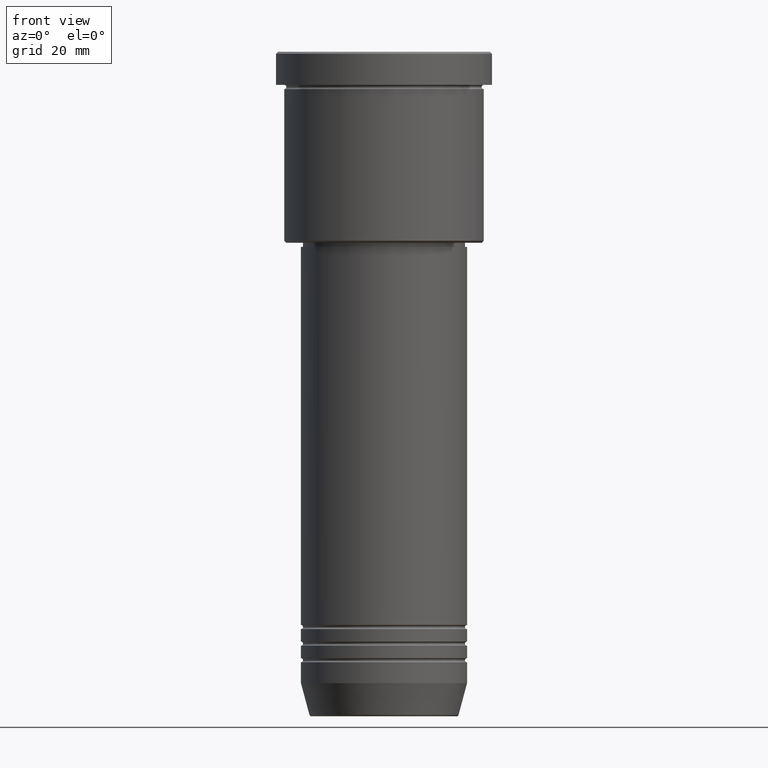
[diagram: clean part render]
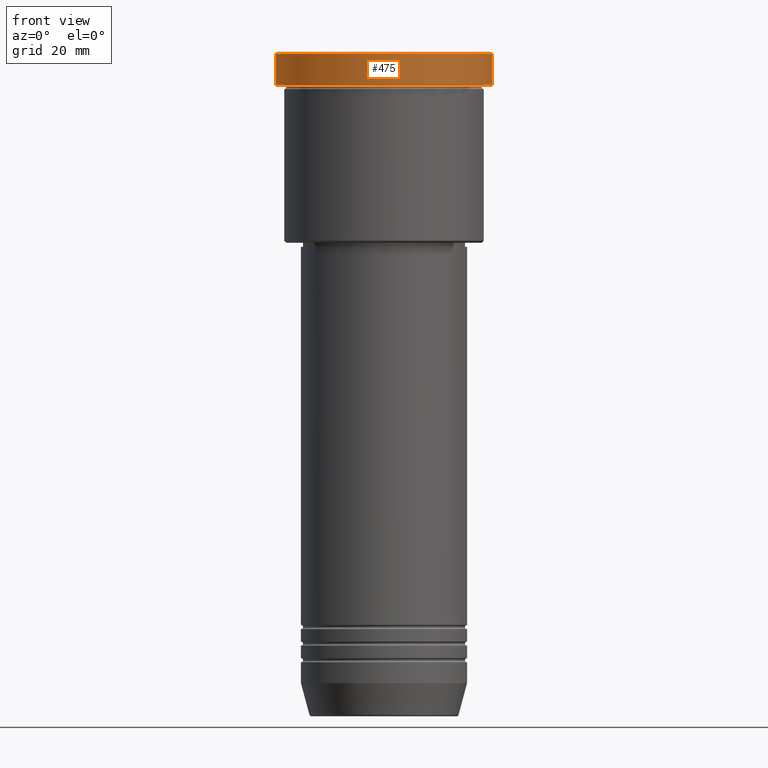
[diagram: same view with one face highlighted and labeled with its STEP entity id]
A machine part, front view. The second image highlights one B-rep face of the part: STEP entity #475.
In plain terms, the highlighted cylindrical surface (partial cylindrical patch) has radius 26 mm, axis along (-0, -0, 1).
Its self-contained STEP definition (entity closure, byte-faithful):
#30 = CARTESIAN_POINT ( 'NONE',  ( 0.000000000000000000, 0.000000000000000000, 0.000000000000000000 ) ) ;
#32 = CARTESIAN_POINT ( 'NONE',  ( -26.00000000000000000, 3.184081677783118191E-15, -0.4999999999999970024 ) ) ;
#37 = EDGE_CURVE ( 'NONE', #872, #152, #359, .T. ) ;
#98 = ORIENTED_EDGE ( 'NONE', *, *, #890, .T. ) ;
#149 = DIRECTION ( 'NONE',  ( -0.000000000000000000, -0.000000000000000000, 1.000000000000000000 ) ) ;
#152 = VERTEX_POINT ( 'NONE', #32 ) ;
#157 = DIRECTION ( 'NONE',  ( 1.000000000000000000, 0.000000000000000000, 0.000000000000000000 ) ) ;
#217 = AXIS2_PLACEMENT_3D ( 'NONE', #30, #773, #1120 ) ;
#249 = ORIENTED_EDGE ( 'NONE', *, *, #673, .T. ) ;
#270 = EDGE_CURVE ( 'NONE', #413, #152, #1069, .T. ) ;
#289 = VERTEX_POINT ( 'NONE', #615 ) ;
#317 = CYLINDRICAL_SURFACE ( 'NONE', #217, 26.00000000000000000 ) ;
#359 = LINE ( 'NONE', #628, #608 ) ;
#387 = DIRECTION ( 'NONE',  ( -0.000000000000000000, -0.000000000000000000, 1.000000000000000000 ) ) ;
#409 = VECTOR ( 'NONE', #149, 1000.000000000000000 ) ;
#413 = VERTEX_POINT ( 'NONE', #1086 ) ;
#475 = ADVANCED_FACE ( 'NONE', ( #1132 ), #317, .T. ) ;
#507 = DIRECTION ( 'NONE',  ( 1.000000000000000000, 0.000000000000000000, 0.000000000000000000 ) ) ;
#594 = CARTESIAN_POINT ( 'NONE',  ( 0.000000000000000000, 0.000000000000000000, -7.999999999999992895 ) ) ;
#608 = VECTOR ( 'NONE', #634, 1000.000000000000000 ) ;
#615 = CARTESIAN_POINT ( 'NONE',  ( 26.00000000000000000, 0.000000000000000000, -7.999999999999992895 ) ) ;
#628 = CARTESIAN_POINT ( 'NONE',  ( -26.00000000000000000, 3.184081677783118191E-15, 0.000000000000000000 ) ) ;
#634 = DIRECTION ( 'NONE',  ( -0.000000000000000000, -0.000000000000000000, 1.000000000000000000 ) ) ;
#673 = EDGE_CURVE ( 'NONE', #289, #413, #880, .T. ) ;
#699 = ORIENTED_EDGE ( 'NONE', *, *, #270, .T. ) ;
#718 = AXIS2_PLACEMENT_3D ( 'NONE', #802, #970, #157 ) ;
#773 = DIRECTION ( 'NONE',  ( -0.000000000000000000, -0.000000000000000000, 1.000000000000000000 ) ) ;
#796 = EDGE_LOOP ( 'NONE', ( #833, #98, #249, #699 ) ) ;
#802 = CARTESIAN_POINT ( 'NONE',  ( 0.000000000000000000, 0.000000000000000000, -0.4999999999999970024 ) ) ;
#821 = CIRCLE ( 'NONE', #860, 26.00000000000000000 ) ;
#833 = ORIENTED_EDGE ( 'NONE', *, *, #37, .F. ) ;
#851 = CARTESIAN_POINT ( 'NONE',  ( -26.00000000000000000, 3.184081677783118191E-15, -7.999999999999992895 ) ) ;
#860 = AXIS2_PLACEMENT_3D ( 'NONE', #594, #387, #507 ) ;
#872 = VERTEX_POINT ( 'NONE', #851 ) ;
#880 = LINE ( 'NONE', #964, #409 ) ;
#890 = EDGE_CURVE ( 'NONE', #872, #289, #821, .T. ) ;
#964 = CARTESIAN_POINT ( 'NONE',  ( 26.00000000000000000, 0.000000000000000000, 0.000000000000000000 ) ) ;
#970 = DIRECTION ( 'NONE',  ( 0.000000000000000000, 0.000000000000000000, -1.000000000000000000 ) ) ;
#1069 = CIRCLE ( 'NONE', #718, 26.00000000000000000 ) ;
#1086 = CARTESIAN_POINT ( 'NONE',  ( 26.00000000000000000, 0.000000000000000000, -0.4999999999999970024 ) ) ;
#1120 = DIRECTION ( 'NONE',  ( 1.000000000000000000, 0.000000000000000000, 0.000000000000000000 ) ) ;
#1132 = FACE_OUTER_BOUND ( 'NONE', #796, .T. ) ;